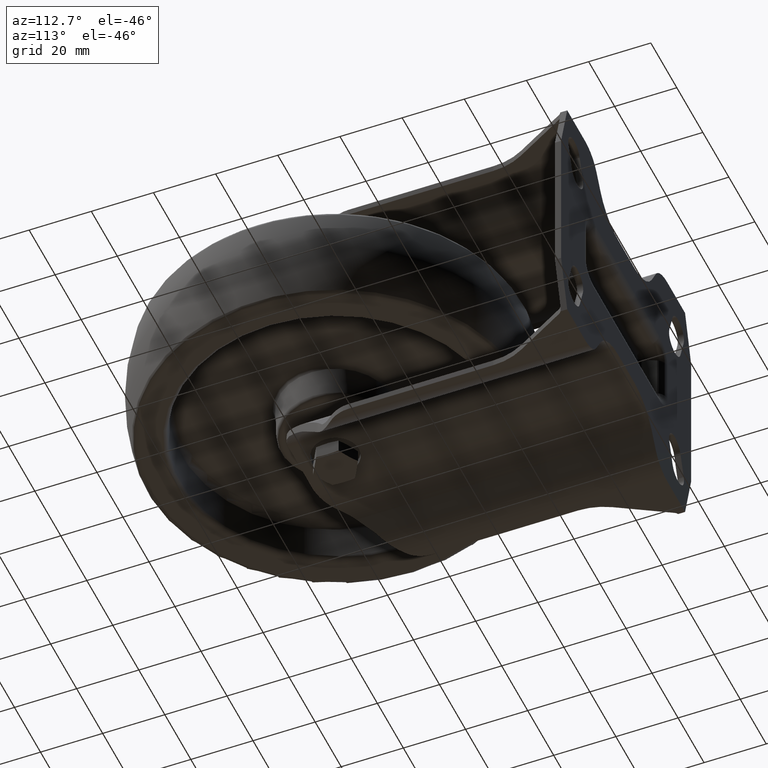
[diagram: clean part render]
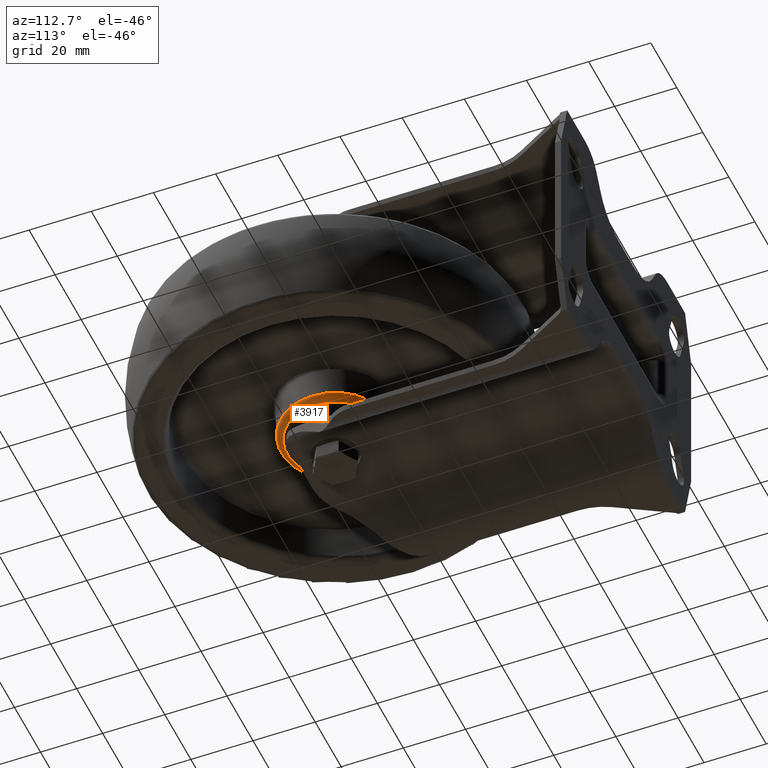
[diagram: same view with one face highlighted and labeled with its STEP entity id]
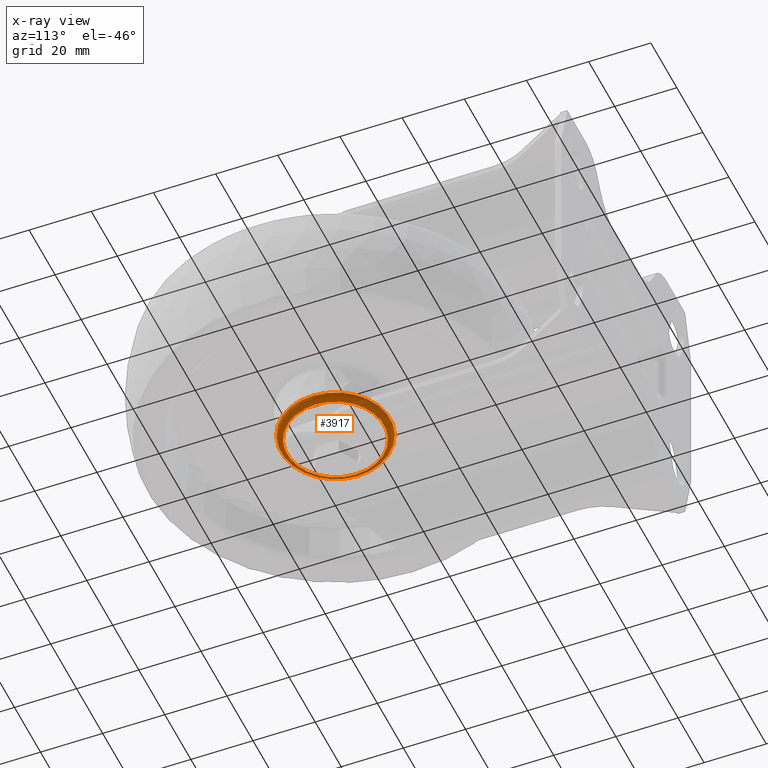
[diagram: x-ray of the same camera — body ghosted, the highlighted face saturated]
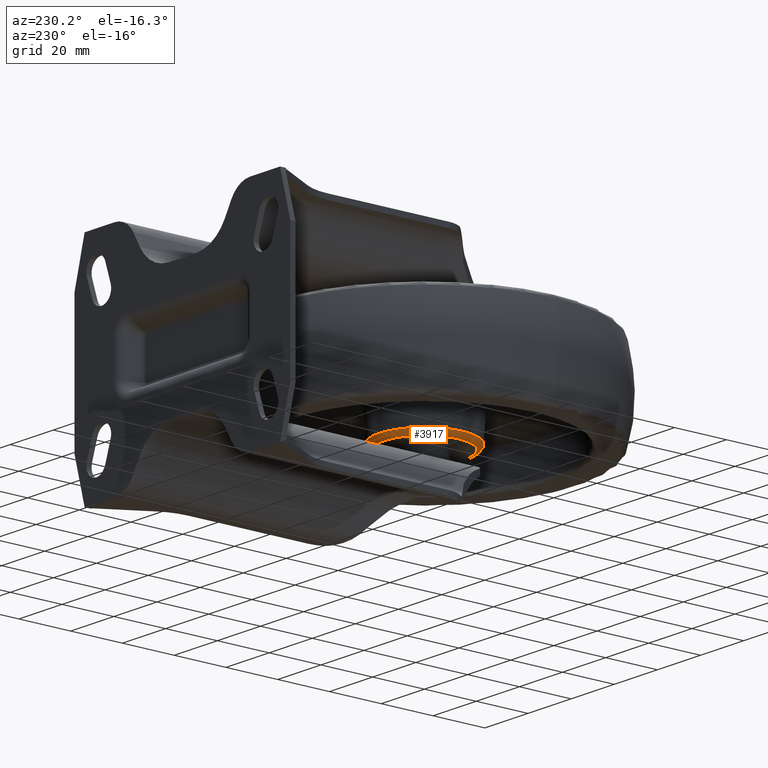
[diagram: same view with one face highlighted and labeled with its STEP entity id]
A machine part, auxiliary view. The second image highlights one B-rep face of the part: STEP entity #3917.
The next image is the same camera in x-ray: the body ghosted, the highlighted face saturated — about 13% of this face is hidden behind the body in this view.
A second angle (auxiliary view) of the same face is appended — the face is thin or edge-on in the first view.
In plain terms, the highlighted toroidal blend (fillet) surface has major radius 15.6021 mm and minor (blend) radius 2 mm.
Its self-contained STEP definition (entity closure, byte-faithful):
#29=TOROIDAL_SURFACE('',#4377,15.6020708665702,2.);
#1083=FACE_OUTER_BOUND('',#1328,.T.);
#1328=EDGE_LOOP('',(#3646,#3647,#3648,#3649));
#1478=CIRCLE('',#4327,15.6020708665702);
#1510=CIRCLE('',#4376,17.5993299360794);
#1511=CIRCLE('',#4378,2.);
#1903=VERTEX_POINT('',#7024);
#1928=VERTEX_POINT('',#7104);
#2462=EDGE_CURVE('',#1903,#1903,#1478,.T.);
#2501=EDGE_CURVE('',#1928,#1928,#1510,.T.);
#2502=EDGE_CURVE('',#1928,#1903,#1511,.T.);
#3646=ORIENTED_EDGE('',*,*,#2501,.F.);
#3647=ORIENTED_EDGE('',*,*,#2502,.T.);
#3648=ORIENTED_EDGE('',*,*,#2462,.T.);
#3649=ORIENTED_EDGE('',*,*,#2502,.F.);
#3917=ADVANCED_FACE('',(#1083),#29,.T.);
#4327=AXIS2_PLACEMENT_3D('',#7025,#5412,#5413);
#4376=AXIS2_PLACEMENT_3D('',#7106,#5517,#5518);
#4377=AXIS2_PLACEMENT_3D('',#7107,#5519,#5520);
#4378=AXIS2_PLACEMENT_3D('',#7108,#5521,#5522);
#5412=DIRECTION('center_axis',(0.,0.,1.));
#5413=DIRECTION('ref_axis',(1.,0.,0.));
#5517=DIRECTION('center_axis',(0.,0.,1.));
#5518=DIRECTION('ref_axis',(1.,0.,0.));
#5519=DIRECTION('center_axis',(0.,0.,1.));
#5520=DIRECTION('ref_axis',(1.,0.,0.));
#5521=DIRECTION('center_axis',(1.22464679914735E-16,-1.,0.));
#5522=DIRECTION('ref_axis',(-1.,-1.22464679914735E-16,0.));
#7024=CARTESIAN_POINT('',(-15.6020708665702,-1.91070261468154E-15,-17.5));
#7025=CARTESIAN_POINT('Origin',(0.,0.,-17.5));
#7104=CARTESIAN_POINT('',(-17.5993299360794,-2.15529630733578E-15,-15.6046719124859));
#7106=CARTESIAN_POINT('Origin',(0.,0.,-15.6046719124859));
#7107=CARTESIAN_POINT('Origin',(0.,0.,-15.5));
#7108=CARTESIAN_POINT('Origin',(-15.6020708665702,-1.91070261468154E-15,
-15.5));